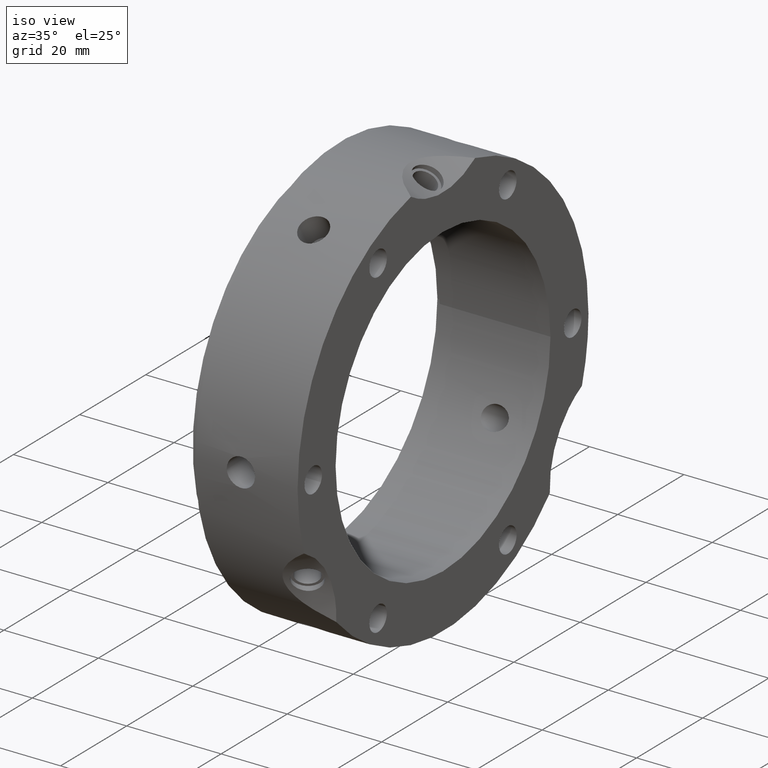
[diagram: clean part render]
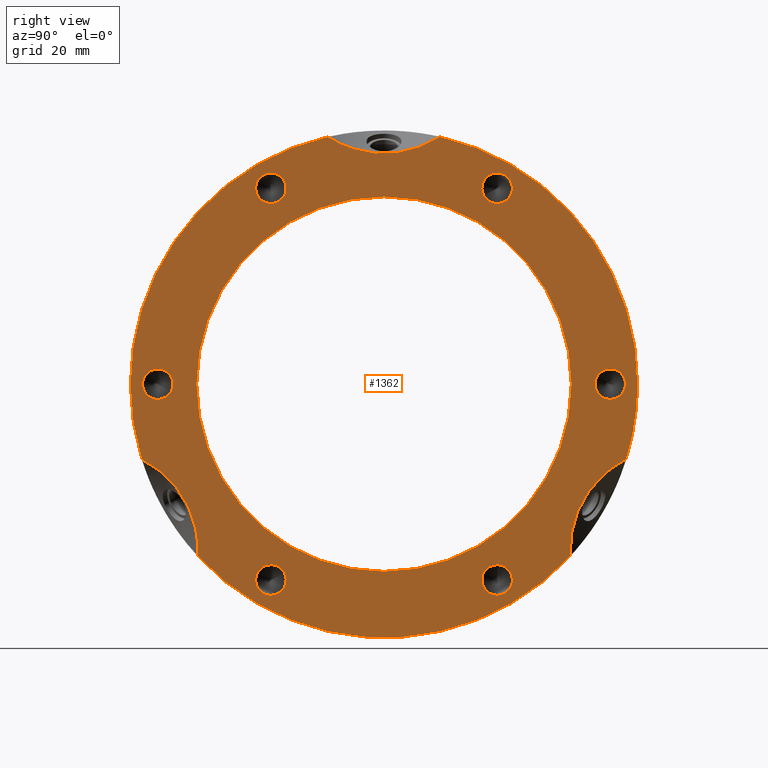
[diagram: tour spotlight — one face highlighted and labeled with its STEP entity id]
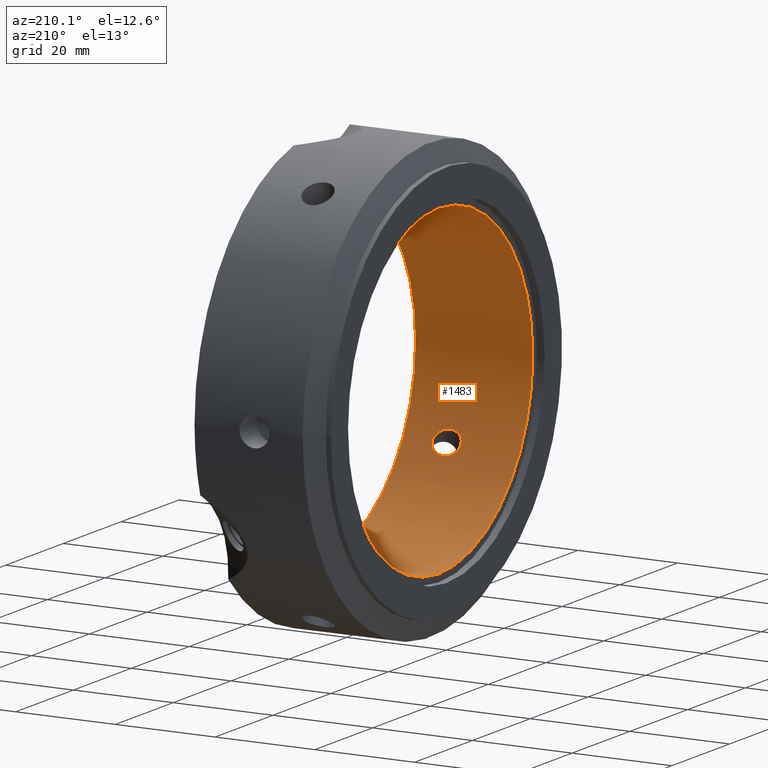
[diagram: tour spotlight — one face highlighted and labeled with its STEP entity id]
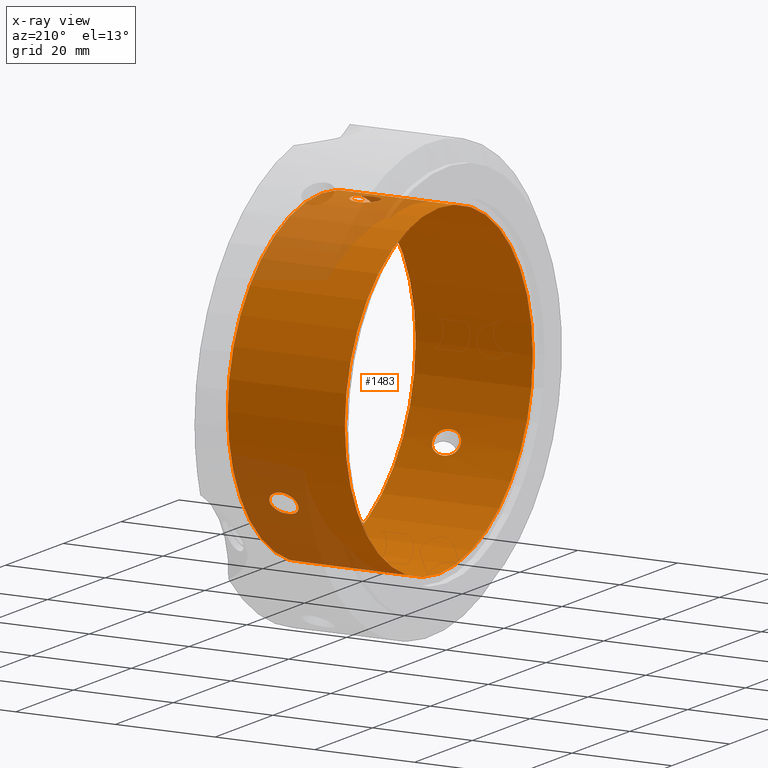
[diagram: x-ray of the same camera — body ghosted, this tour face saturated]
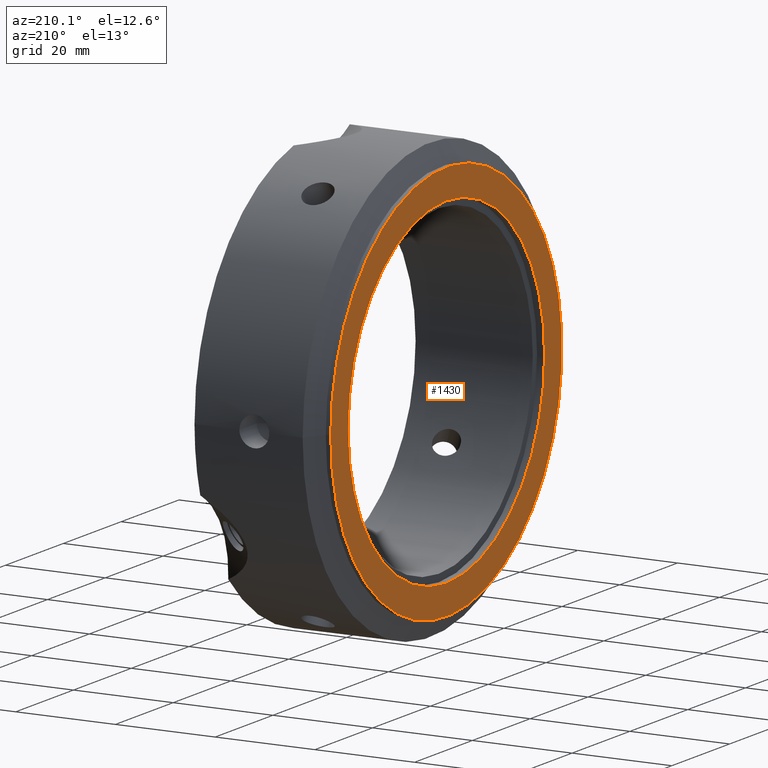
[diagram: tour spotlight — one face highlighted and labeled with its STEP entity id]
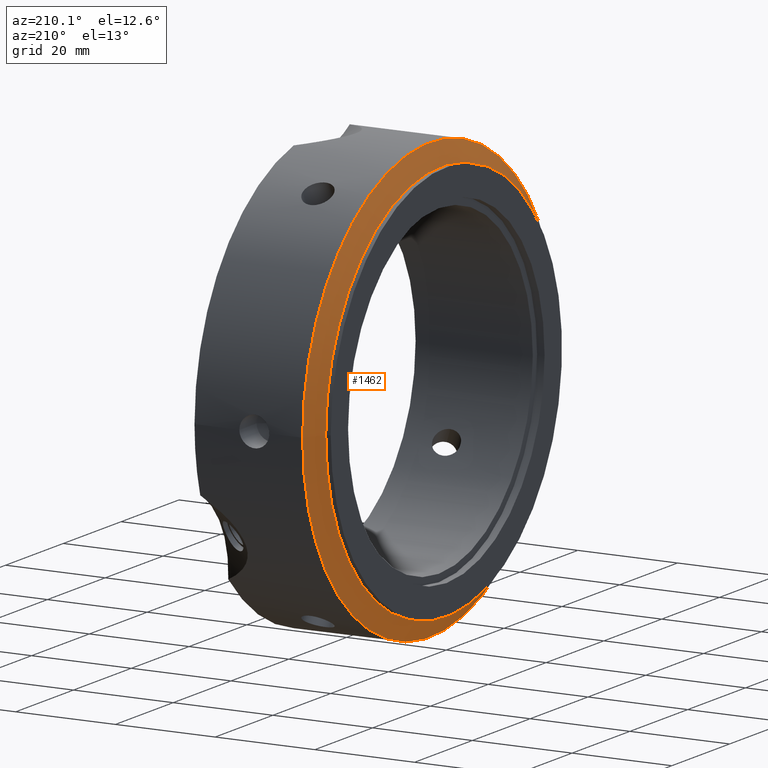
[diagram: tour spotlight — one face highlighted and labeled with its STEP entity id]
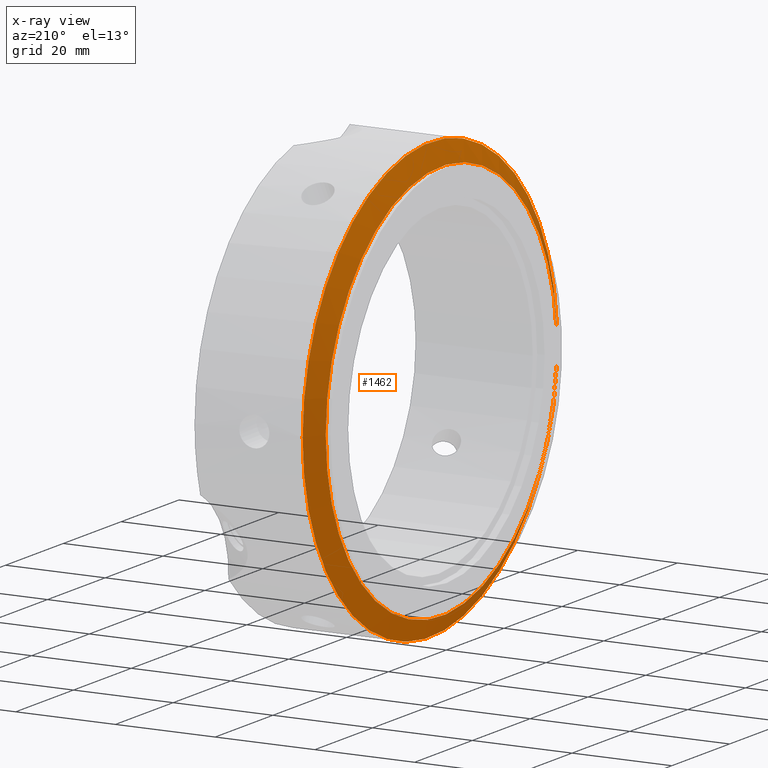
[diagram: x-ray of the same camera — body ghosted, this tour face saturated]
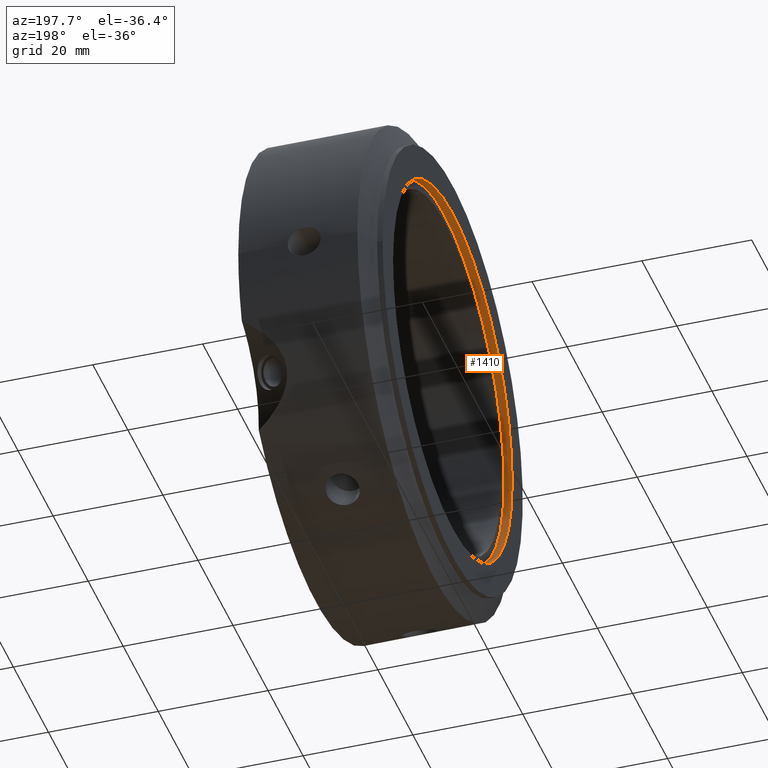
[diagram: tour spotlight — one face highlighted and labeled with its STEP entity id]
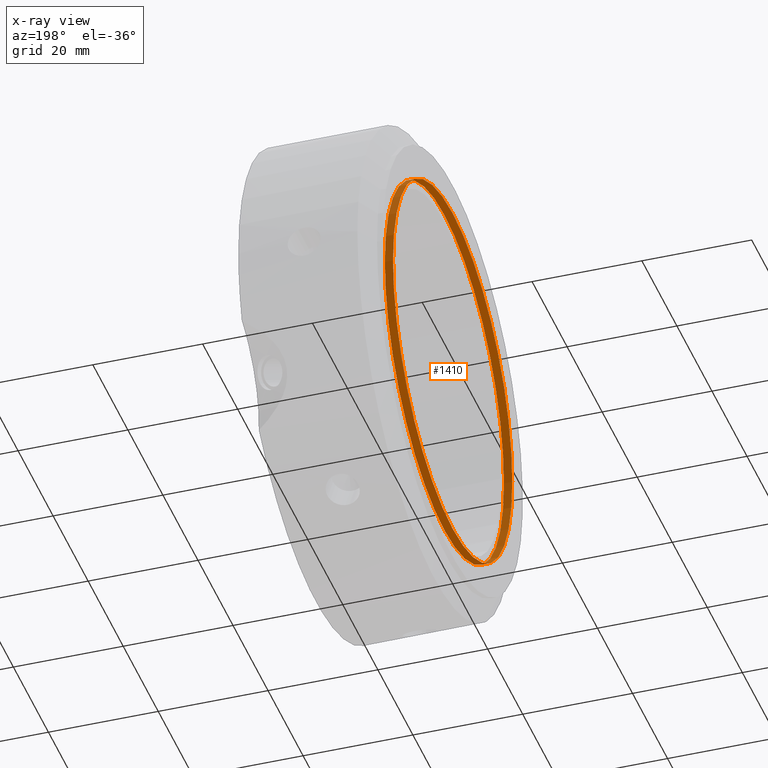
[diagram: x-ray of the same camera — body ghosted, this tour face saturated]
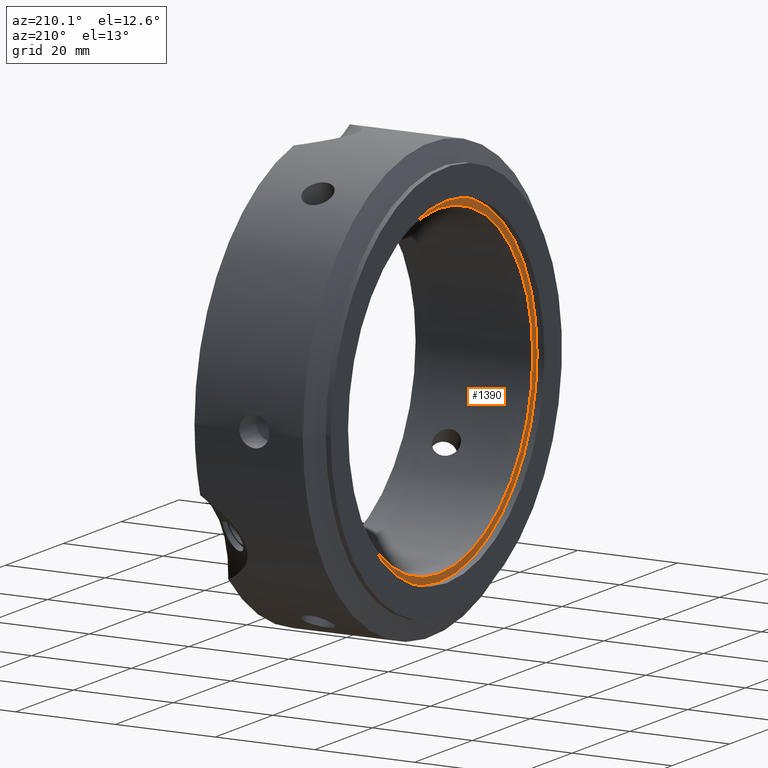
[diagram: tour spotlight — one face highlighted and labeled with its STEP entity id]
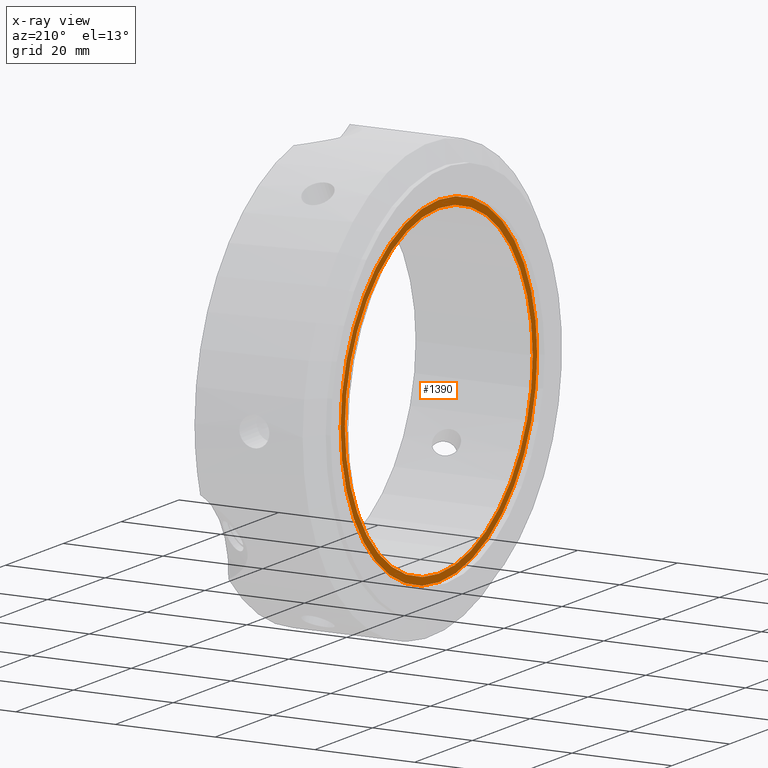
[diagram: x-ray of the same camera — body ghosted, this tour face saturated]
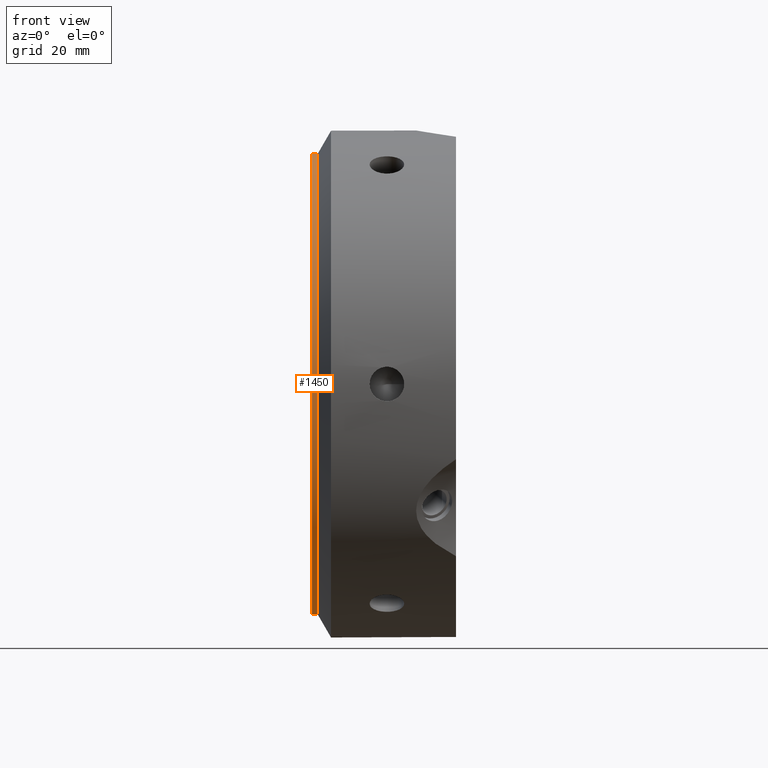
[diagram: tour spotlight — one face highlighted and labeled with its STEP entity id]
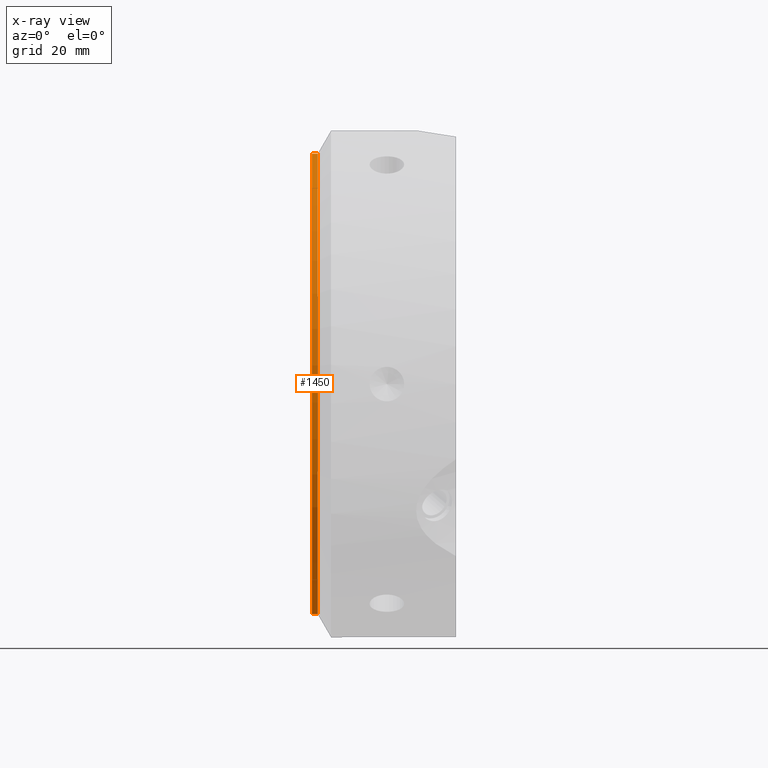
[diagram: x-ray of the same camera — body ghosted, this tour face saturated]
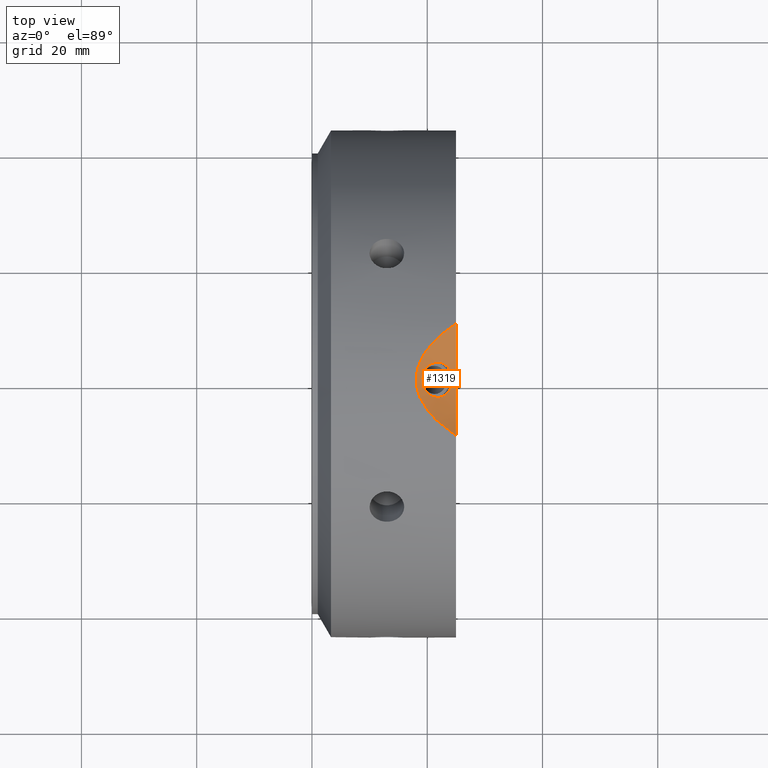
[diagram: tour spotlight — one face highlighted and labeled with its STEP entity id]
A machine part: a face-by-face anatomy tour. The part has 44 B-rep faces; the first image is the clean iso view, then the 8 largest visible faces are spotlighted one at a time (largest first), each with its STEP entity span.

Face 1 — right view, entity #1362. In plain terms, the highlighted planar face has unit normal (1, 0, 0).
Definition (entity closure, byte-faithful):
#165=CARTESIAN_POINT('',(24.999999999999993,17.330032679971254,32.666497098539224));
#166=VERTEX_POINT('',#165);
#167=CARTESIAN_POINT('',(24.999999999999993,19.625000000000018,33.99149709853922));
#168=DIRECTION('',(-1.0,0.0,0.0));
#169=DIRECTION('',(0.0,-0.866025403784439,-0.499999999999999));
#170=AXIS2_PLACEMENT_3D('',#167,#168,#169);
#171=CIRCLE('',#170,2.65);
#172=EDGE_CURVE('',#166,#166,#171,.T.);
#277=CARTESIAN_POINT('',(24.999999999999993,36.955032679971254,1.325000000000001));
#278=VERTEX_POINT('',#277);
#279=CARTESIAN_POINT('',(24.999999999999993,39.250000000000014,-2.220446E-015));
#280=DIRECTION('',(-1.0,0.0,0.0));
#281=DIRECTION('',(0.0,-0.866025403784438,0.5));
#282=AXIS2_PLACEMENT_3D('',#279,#280,#281);
#283=CIRCLE('',#282,2.65);
#284=EDGE_CURVE('',#278,#278,#283,.T.);
#389=CARTESIAN_POINT('',(24.999999999999993,19.625000000000018,-31.341497098539222));
#390=VERTEX_POINT('',#389);
#391=CARTESIAN_POINT('',(24.999999999999993,19.625000000000014,-33.991497098539227));
#392=DIRECTION('',(-1.0,0.0,0.0));
#393=DIRECTION('',(0.0,0.0,1.0));
#394=AXIS2_PLACEMENT_3D('',#391,#392,#393);
#395=CIRCLE('',#394,2.65);
#396=EDGE_CURVE('',#390,#390,#395,.T.);
#501=CARTESIAN_POINT('',(24.999999999999993,-17.330032679971236,-32.666497098539232));
#502=VERTEX_POINT('',#501);
#503=CARTESIAN_POINT('',(24.999999999999993,-19.625,-33.991497098539234));
#504=DIRECTION('',(-1.0,0.0,0.0));
#505=DIRECTION('',(0.0,0.866025403784439,0.5));
#506=AXIS2_PLACEMENT_3D('',#503,#504,#505);
#507=CIRCLE('',#506,2.65);
#508=EDGE_CURVE('',#502,#502,#507,.T.);
#613=CARTESIAN_POINT('',(24.999999999999993,-36.955032679971247,-1.325000000000014));
#614=VERTEX_POINT('',#613);
#615=CARTESIAN_POINT('',(24.999999999999993,-39.250000000000014,-1.332268E-014));
#616=DIRECTION('',(-1.0,0.0,0.0));
#617=DIRECTION('',(0.0,0.866025403784438,-0.5));
#618=AXIS2_PLACEMENT_3D('',#615,#616,#617);
#619=CIRCLE('',#618,2.65);
#620=EDGE_CURVE('',#614,#614,#619,.T.);
#650=CARTESIAN_POINT('',(24.999999999999993,-19.625000000000025,31.341497098539218));
#651=VERTEX_POINT('',#650);
#652=CARTESIAN_POINT('',(24.999999999999993,-19.625000000000025,33.99149709853922));
#653=DIRECTION('',(-1.0,0.0,0.0));
#654=DIRECTION('',(0.0,0.0,-1.0));
#655=AXIS2_PLACEMENT_3D('',#652,#653,#654);
#656=CIRCLE('',#655,2.65);
#657=EDGE_CURVE('',#651,#651,#656,.T.);
#873=CARTESIAN_POINT('',(24.999999999999986,32.301979472688544,-29.87611290221686));
#874=VERTEX_POINT('',#873);
#875=CARTESIAN_POINT('',(24.999999999999986,42.024462475996074,-13.036278364763378));
#876=VERTEX_POINT('',#875);
#877=CARTESIAN_POINT('',(24.999999999999993,54.641016151377542,-31.547005383792552));
#878=DIRECTION('',(-1.0,0.0,0.0));
#879=DIRECTION('',(0.0,-0.866025403784438,0.500000000000001));
#880=AXIS2_PLACEMENT_3D('',#877,#878,#879);
#881=ELLIPSE('',#880,23.094010767585047,20.000000000000014);
#882=EDGE_CURVE('',#874,#876,#881,.T.);
#1044=CARTESIAN_POINT('',(24.999999999999986,-42.024462475996096,-13.036278364763351));
#1045=VERTEX_POINT('',#1044);
#1046=CARTESIAN_POINT('',(24.999999999999986,-32.301979472688572,-29.876112902216821));
#1047=VERTEX_POINT('',#1046);
#1048=CARTESIAN_POINT('',(24.999999999999993,-54.641016151377571,-31.547005383792509));
#1049=DIRECTION('',(-1.0,0.0,0.0));
#1050=DIRECTION('',(0.0,0.866025403784439,0.5));
#1051=AXIS2_PLACEMENT_3D('',#1048,#1049,#1050);
#1052=ELLIPSE('',#1051,23.094010767585047,20.000000000000011);
#1053=EDGE_CURVE('',#1045,#1047,#1052,.T.);
#1123=CARTESIAN_POINT('',(24.999999999999986,0.0,0.0));
#1124=DIRECTION('',(1.0,0.0,0.0));
#1125=DIRECTION('',(0.0,1.0,0.0));
#1126=AXIS2_PLACEMENT_3D('',#1123,#1124,#1125);
#1127=CIRCLE('',#1126,44.0);
#1128=EDGE_CURVE('',#1047,#874,#1127,.T.);
#1131=CARTESIAN_POINT('',(24.999999999999986,-9.722483003307554,42.912391266980173));
#1132=VERTEX_POINT('',#1131);
#1133=CARTESIAN_POINT('',(24.999999999999986,0.0,0.0));
#1134=DIRECTION('',(1.0,0.0,0.0));
#1135=DIRECTION('',(0.0,1.0,0.0));
#1136=AXIS2_PLACEMENT_3D('',#1133,#1134,#1135);
#1137=CIRCLE('',#1136,44.0);
#1138=EDGE_CURVE('',#1132,#1045,#1137,.T.);
#1140=CARTESIAN_POINT('',(24.999999999999986,9.722483003307554,42.912391266980173));
#1141=VERTEX_POINT('',#1140);
#1163=CARTESIAN_POINT('',(24.999999999999986,0.0,0.0));
#1164=DIRECTION('',(1.0,0.0,0.0));
#1165=DIRECTION('',(0.0,1.0,0.0));
#1166=AXIS2_PLACEMENT_3D('',#1163,#1164,#1165);
#1167=CIRCLE('',#1166,44.0);
#1168=EDGE_CURVE('',#876,#1141,#1167,.T.);
#1306=CARTESIAN_POINT('',(24.999999999999993,0.0,63.094010767585047));
#1307=DIRECTION('',(-1.0,0.0,0.0));
#1308=DIRECTION('',(0.0,0.0,-1.0));
#1309=AXIS2_PLACEMENT_3D('',#1306,#1307,#1308);
#1310=ELLIPSE('',#1309,23.094010767585047,20.000000000000007);
#1311=EDGE_CURVE('',#1141,#1132,#1310,.T.);
#1320=CARTESIAN_POINT('',(24.999999999999993,38.25,0.0));
#1321=DIRECTION('',(1.0,0.0,0.0));
#1322=DIRECTION('',(0.0,0.0,-1.0));
#1323=AXIS2_PLACEMENT_3D('',#1320,#1321,#1322);
#1324=PLANE('',#1323);
#1325=ORIENTED_EDGE('',*,*,#882,.T.);
#1326=ORIENTED_EDGE('',*,*,#1168,.T.);
#1327=ORIENTED_EDGE('',*,*,#1311,.T.);
#1328=ORIENTED_EDGE('',*,*,#1138,.T.);
#1329=ORIENTED_EDGE('',*,*,#1053,.T.);
#1330=ORIENTED_EDGE('',*,*,#1128,.T.);
#1331=EDGE_LOOP('',(#1325,#1326,#1327,#1328,#1329,#1330));
#1332=FACE_OUTER_BOUND('',#1331,.T.);
#1333=ORIENTED_EDGE('',*,*,#172,.T.);
#1334=EDGE_LOOP('',(#1333));
#1335=FACE_BOUND('',#1334,.T.);
#1336=ORIENTED_EDGE('',*,*,#284,.T.);
#1337=EDGE_LOOP('',(#1336));
#1338=FACE_BOUND('',#1337,.T.);
#1339=ORIENTED_EDGE('',*,*,#396,.T.);
#1340=EDGE_LOOP('',(#1339));
#1341=FACE_BOUND('',#1340,.T.);
#1342=ORIENTED_EDGE('',*,*,#508,.T.);
#1343=EDGE_LOOP('',(#1342));
#1344=FACE_BOUND('',#1343,.T.);
#1345=ORIENTED_EDGE('',*,*,#620,.T.);
#1346=EDGE_LOOP('',(#1345));
#1347=FACE_BOUND('',#1346,.T.);
#1348=ORIENTED_EDGE('',*,*,#657,.T.);
#1349=EDGE_LOOP('',(#1348));
#1350=FACE_BOUND('',#1349,.T.);
#1351=CARTESIAN_POINT('',(24.999999999999993,32.5,0.0));
#1352=VERTEX_POINT('',#1351);
#1353=CARTESIAN_POINT('',(24.999999999999993,0.0,0.0));
#1354=DIRECTION('',(1.0,0.0,0.0));
#1355=DIRECTION('',(0.0,1.0,0.0));
#1356=AXIS2_PLACEMENT_3D('',#1353,#1354,#1355);
#1357=CIRCLE('',#1356,32.5);
#1358=EDGE_CURVE('',#1352,#1352,#1357,.T.);
#1359=ORIENTED_EDGE('',*,*,#1358,.F.);
#1360=EDGE_LOOP('',(#1359));
#1361=FACE_BOUND('',#1360,.T.);
#1362=ADVANCED_FACE('',(#1332,#1335,#1338,#1341,#1344,#1347,#1350,#1361),#1324,.T.);

Face 2 — auxiliary view, entity #1483. An x-ray twin of the same camera follows (body ghosted, this face saturated) — the face is partly hidden behind the body. In plain terms, the highlighted cylindrical surface (bore or boss wall) has radius 32.5 mm, axis along (1, 0, 0).
Definition (entity closure, byte-faithful):
#745=CARTESIAN_POINT('',(16.210120057961518,29.294430086942246,-14.074315822847403));
#746=VERTEX_POINT('',#745);
#747=CARTESIAN_POINT('',(16.210120057961518,29.294430086942246,-14.074315822847403));
#748=CARTESIAN_POINT('',(16.57503358276189,29.294430086942246,-14.074315822847403));
#749=CARTESIAN_POINT('',(16.96706125116923,29.266752719532878,-14.132409695736929));
#750=CARTESIAN_POINT('',(17.698370893629917,29.149675977489558,-14.372341807928093));
#751=CARTESIAN_POINT('',(18.037672121922338,29.060102744699137,-14.554036471783586));
#752=CARTESIAN_POINT('',(18.537619391257387,28.855729561517698,-14.954569768897471));
#753=CARTESIAN_POINT('',(18.746196931722817,28.734767003939453,-15.187121027222286));
#754=CARTESIAN_POINT('',(19.029065453284158,28.456892223965035,-15.701616641372183));
#755=CARTESIAN_POINT('',(19.102715022268239,28.29957660597487,-15.983695485763906));
#756=CARTESIAN_POINT('',(19.102715022268239,27.99207464001362,-16.516304514236115));
#757=CARTESIAN_POINT('',(19.029065453284158,27.826445003895305,-16.79358325802351));
#758=CARTESIAN_POINT('',(18.746196931722817,27.51981612189303,-17.291477683627317));
#759=CARTESIAN_POINT('',(18.537619391257387,27.378902103290823,-17.512509960559218));
#760=CARTESIAN_POINT('',(18.037672121922338,27.134216684519377,-17.889768977603573));
#761=CARTESIAN_POINT('',(17.698370893629917,27.02165110628366,-18.058189004626925));
#762=CARTESIAN_POINT('',(16.96706125116923,26.872402172964112,-18.279546493524332));
#763=CARTESIAN_POINT('',(16.57503358276189,26.835930086942245,-18.332562733255489));
#764=CARTESIAN_POINT('',(15.86665484263558,26.835930086942245,-18.332562733255489));
#765=CARTESIAN_POINT('',(15.496584963065384,26.868400437188882,-18.285355808605072));
#766=CARTESIAN_POINT('',(14.8062506452608,27.006261274252683,-18.081123612391025));
#767=CARTESIAN_POINT('',(14.486087314613778,27.111645368241717,-17.923752426328186));
#768=CARTESIAN_POINT('',(13.993137445580082,27.351322501293531,-17.555614044871245));
#769=CARTESIAN_POINT('',(13.781439568577563,27.49764229802372,-17.326898578499318));
#770=CARTESIAN_POINT('',(13.497335287943324,27.815807414948143,-16.811383171620037));
#771=CARTESIAN_POINT('',(13.425052475057456,27.987417893304286,-16.524370236134654));
#772=CARTESIAN_POINT('',(13.425052475057456,28.304233352684204,-15.975629763865369));
#773=CARTESIAN_POINT('',(13.497335287943326,28.466988606851217,-15.683504262310651));
#774=CARTESIAN_POINT('',(13.781439568577568,28.754355486788739,-15.150207485016409));
#775=CARTESIAN_POINT('',(13.993137445580077,28.879268992540137,-14.909133090785529));
#776=CARTESIAN_POINT('',(14.486087314613778,29.078247616464026,-14.51749741412797));
#777=CARTESIAN_POINT('',(14.806250645260802,29.161843014423617,-14.347546518547238));
#778=CARTESIAN_POINT('',(15.496584963065388,29.269782866083766,-14.126039433355979));
#779=CARTESIAN_POINT('',(15.866654842635581,29.294430086942249,-14.074315822847403));
#780=CARTESIAN_POINT('',(16.210120057961518,29.294430086942249,-14.074315822847403));
#781=B_SPLINE_CURVE_WITH_KNOTS('',3,(#747,#748,#749,#750,#751,#752,#753,#754,#755,#756,#757,#758,#759,#760,#761,#762,#763,#764,#765,#766,#767,#768,#769,#770,#771,#772,#773,#774,#775,#776,#777,#778,#779,#780),.UNSPECIFIED.,.T.,.U.,(4,2,2,2,2,2,2,2,2,2,2,2,2,2,2,2,4),(0.0,0.109474057440112,0.218948114880225,0.311198704668601,0.403449294456978,0.495699884245354,0.587950474033731,0.697424531473843,0.806898588913956,0.909938153511736,1.012977718109517,1.108022355923491,1.203066993737465,1.29811163155144,1.393156269365415,1.496195833963195,1.599235398560976),.UNSPECIFIED.);
#782=EDGE_CURVE('',#746,#746,#781,.T.);
#916=CARTESIAN_POINT('',(16.210120057961518,-26.835930086942259,-18.332562733255472));
#917=VERTEX_POINT('',#916);
#918=CARTESIAN_POINT('',(16.210120057961518,-26.835930086942259,-18.332562733255472));
#919=CARTESIAN_POINT('',(16.57503358276189,-26.835930086942259,-18.332562733255472));
#920=CARTESIAN_POINT('',(16.967061251169241,-26.872402172964129,-18.279546493524318));
#921=CARTESIAN_POINT('',(17.698370893629928,-27.021651106283677,-18.058189004626904));
#922=CARTESIAN_POINT('',(18.037672121922341,-27.134216684519394,-17.889768977603552));
#923=CARTESIAN_POINT('',(18.53761939125739,-27.378902103290841,-17.512509960559196));
#924=CARTESIAN_POINT('',(18.746196931722821,-27.519816121893047,-17.291477683627292));
#925=CARTESIAN_POINT('',(19.029065453284158,-27.826445003895323,-16.793583258023485));
#926=CARTESIAN_POINT('',(19.102715022268242,-27.992074640013634,-16.516304514236097));
#927=CARTESIAN_POINT('',(19.102715022268242,-28.299576605974892,-15.983695485763887));
#928=CARTESIAN_POINT('',(19.029065453284161,-28.456892223965049,-15.701616641372162));
#929=CARTESIAN_POINT('',(18.746196931722821,-28.734767003939467,-15.187121027222265));
#930=CARTESIAN_POINT('',(18.53761939125739,-28.855729561517709,-14.95456976889745));
#931=CARTESIAN_POINT('',(18.037672121922341,-29.060102744699144,-14.554036471783565));
#932=CARTESIAN_POINT('',(17.698370893629921,-29.149675977489569,-14.372341807928073));
#933=CARTESIAN_POINT('',(16.967061251169234,-29.266752719532889,-14.132409695736909));
#934=CARTESIAN_POINT('',(16.575033582761893,-29.294430086942256,-14.074315822847385));
#935=CARTESIAN_POINT('',(15.866654842635583,-29.294430086942256,-14.074315822847385));
#936=CARTESIAN_POINT('',(15.49658496306539,-29.269782866083776,-14.126039433355956));
#937=CARTESIAN_POINT('',(14.806250645260802,-29.161843014423624,-14.347546518547215));
#938=CARTESIAN_POINT('',(14.486087314613778,-29.078247616464033,-14.517497414127952));
#939=CARTESIAN_POINT('',(13.993137445580079,-28.879268992540148,-14.909133090785511));
#940=CARTESIAN_POINT('',(13.78143956857757,-28.754355486788754,-15.150207485016395));
#941=CARTESIAN_POINT('',(13.497335287943331,-28.466988606851235,-15.683504262310633));
#942=CARTESIAN_POINT('',(13.425052475057463,-28.304233352684221,-15.975629763865351));
#943=CARTESIAN_POINT('',(13.425052475057463,-27.987417893304304,-16.524370236134637));
#944=CARTESIAN_POINT('',(13.497335287943324,-27.815807414948154,-16.811383171620019));
#945=CARTESIAN_POINT('',(13.781439568577557,-27.497642298023731,-17.3268985784993));
#946=CARTESIAN_POINT('',(13.993137445580084,-27.351322501293545,-17.555614044871227));
#947=CARTESIAN_POINT('',(14.486087314613783,-27.111645368241732,-17.923752426328168));
#948=CARTESIAN_POINT('',(14.806250645260803,-27.006261274252694,-18.081123612391011));
#949=CARTESIAN_POINT('',(15.49658496306539,-26.8684004371889,-18.285355808605058));
#950=CARTESIAN_POINT('',(15.866654842635583,-26.835930086942255,-18.332562733255468));
#951=CARTESIAN_POINT('',(16.210120057961518,-26.835930086942255,-18.332562733255468));
#952=B_SPLINE_CURVE_WITH_KNOTS('',3,(#918,#919,#920,#921,#922,#923,#924,#925,#926,#927,#928,#929,#930,#931,#932,#933,#934,#935,#936,#937,#938,#939,#940,#941,#942,#943,#944,#945,#946,#947,#948,#949,#950,#951),.UNSPECIFIED.,.T.,.U.,(4,2,2,2,2,2,2,2,2,2,2,2,2,2,2,2,4),(0.0,0.109474057440113,0.218948114880225,0.311198704668602,0.403449294456978,0.495699884245354,0.587950474033731,0.697424531473843,0.806898588913956,0.909938153511736,1.012977718109517,1.108022355923492,1.203066993737466,1.29811163155144,1.393156269365415,1.496195833963195,1.599235398560976),.UNSPECIFIED.);
#953=EDGE_CURVE('',#917,#917,#952,.T.);
#1178=CARTESIAN_POINT('',(16.210120057961518,-2.4585,32.406878556102868));
#1179=VERTEX_POINT('',#1178);
#1180=CARTESIAN_POINT('',(16.210120057961518,-2.4585,32.406878556102868));
#1181=CARTESIAN_POINT('',(16.575033582761893,-2.4585,32.406878556102868));
#1182=CARTESIAN_POINT('',(16.967061251169238,-2.394350546568762,32.411956189261247));
#1183=CARTESIAN_POINT('',(17.698370893629924,-2.128024871205897,32.430530812554991));
#1184=CARTESIAN_POINT('',(18.037672121922341,-1.925886060179755,32.443805449387135));
#1185=CARTESIAN_POINT('',(18.53761939125739,-1.476827458226871,32.467079729456657));
#1186=CARTESIAN_POINT('',(18.746196931722825,-1.214950882046424,32.478598710849568));
#1187=CARTESIAN_POINT('',(19.029065453284161,-0.630447220069727,32.495199899395658));
#1188=CARTESIAN_POINT('',(19.102715022268242,-0.307501965961255,32.5));
#1189=CARTESIAN_POINT('',(19.102715022268242,0.307501965961255,32.5));
#1190=CARTESIAN_POINT('',(19.029065453284161,0.630447220069728,32.495199899395658));
#1191=CARTESIAN_POINT('',(18.746196931722825,1.214950882046424,32.478598710849568));
#1192=CARTESIAN_POINT('',(18.53761939125739,1.476827458226871,32.467079729456657));
#1193=CARTESIAN_POINT('',(18.037672121922341,1.925886060179755,32.443805449387135));
#1194=CARTESIAN_POINT('',(17.698370893629921,2.128024871205897,32.430530812554991));
#1195=CARTESIAN_POINT('',(16.967061251169238,2.394350546568761,32.411956189261247));
#1196=CARTESIAN_POINT('',(16.575033582761893,2.4585,32.406878556102868));
#1197=CARTESIAN_POINT('',(15.866654842635581,2.4585,32.406878556102868));
#1198=CARTESIAN_POINT('',(15.496584963065384,2.401382428894884,32.411395241961017));
#1199=CARTESIAN_POINT('',(14.8062506452608,2.15558174017093,32.428670130938229));
#1200=CARTESIAN_POINT('',(14.486087314613778,1.966602248222307,32.44124984045613));
#1201=CARTESIAN_POINT('',(13.993137445580084,1.527946491246603,32.464747135656751));
#1202=CARTESIAN_POINT('',(13.781439568577564,1.256713188765015,32.47710606351572));
#1203=CARTESIAN_POINT('',(13.497335287943329,0.651181191903073,32.494887433930671));
#1204=CARTESIAN_POINT('',(13.425052475057463,0.316815459379914,32.5));
#1205=CARTESIAN_POINT('',(13.425052475057463,-0.306092595390122,32.5));
#1206=CARTESIAN_POINT('',(13.492579725603719,-0.630078381390714,32.495232614889972));
#1207=CARTESIAN_POINT('',(13.759658566981345,-1.22023379569566,32.478426238889583));
#1208=CARTESIAN_POINT('',(13.959072060468031,-1.486473714036498,32.466662387332939));
#1209=CARTESIAN_POINT('',(14.441015681009446,-1.937134878608941,32.44312102868502));
#1210=CARTESIAN_POINT('',(14.767376201636537,-2.137246107297626,32.429912621796881));
#1211=CARTESIAN_POINT('',(15.474902840241405,-2.39778834734434,32.411690246232304));
#1212=CARTESIAN_POINT('',(15.855970777823174,-2.4585,32.406878556102868));
#1213=CARTESIAN_POINT('',(16.210120057961518,-2.4585,32.406878556102868));
#1214=B_SPLINE_CURVE_WITH_KNOTS('',3,(#1180,#1181,#1182,#1183,#1184,#1185,#1186,#1187,#1188,#1189,#1190,#1191,#1192,#1193,#1194,#1195,#1196,#1197,#1198,#1199,#1200,#1201,#1202,#1203,#1204,#1205,#1206,#1207,#1208,#1209,#1210,#1211,#1212,#1213),.UNSPECIFIED.,.T.,.U.,(4,2,2,2,2,2,2,2,2,2,2,2,2,2,2,2,4),(0.0,0.109474057440112,0.218948114880225,0.311198704668601,0.403449294456978,0.495699884245354,0.587950474033731,0.697424531473843,0.806898588913956,0.909938153511736,1.012977718109517,1.108022355923491,1.203066993737465,1.294894772354502,1.386722550971539,1.492967335013042,1.599212119054545),.UNSPECIFIED.);
#1215=EDGE_CURVE('',#1179,#1179,#1214,.T.);
#1351=CARTESIAN_POINT('',(24.999999999999993,32.5,0.0));
#1352=VERTEX_POINT('',#1351);
#1353=CARTESIAN_POINT('',(24.999999999999993,0.0,0.0));
#1354=DIRECTION('',(1.0,0.0,0.0));
#1355=DIRECTION('',(0.0,1.0,0.0));
#1356=AXIS2_PLACEMENT_3D('',#1353,#1354,#1355);
#1357=CIRCLE('',#1356,32.5);
#1358=EDGE_CURVE('',#1352,#1352,#1357,.T.);
#1379=CARTESIAN_POINT('',(1.499999999999991,32.5,0.0));
#1380=VERTEX_POINT('',#1379);
#1381=CARTESIAN_POINT('',(1.499999999999991,0.0,0.0));
#1382=DIRECTION('',(1.0,0.0,0.0));
#1383=DIRECTION('',(0.0,1.0,0.0));
#1384=AXIS2_PLACEMENT_3D('',#1381,#1382,#1383);
#1385=CIRCLE('',#1384,32.5);
#1386=EDGE_CURVE('',#1380,#1380,#1385,.T.);
#1463=CARTESIAN_POINT('',(13.249999999999989,0.0,0.0));
#1464=DIRECTION('',(1.0,0.0,0.0));
#1465=DIRECTION('',(0.0,1.0,0.0));
#1466=AXIS2_PLACEMENT_3D('',#1463,#1464,#1465);
#1467=CYLINDRICAL_SURFACE('',#1466,32.5);
#1468=ORIENTED_EDGE('',*,*,#1386,.F.);
#1469=EDGE_LOOP('',(#1468));
#1470=FACE_OUTER_BOUND('',#1469,.T.);
#1471=ORIENTED_EDGE('',*,*,#782,.T.);
#1472=EDGE_LOOP('',(#1471));
#1473=FACE_BOUND('',#1472,.T.);
#1474=ORIENTED_EDGE('',*,*,#953,.T.);
#1475=EDGE_LOOP('',(#1474));
#1476=FACE_BOUND('',#1475,.T.);
#1477=ORIENTED_EDGE('',*,*,#1215,.T.);
#1478=EDGE_LOOP('',(#1477));
#1479=FACE_BOUND('',#1478,.T.);
#1480=ORIENTED_EDGE('',*,*,#1358,.T.);
#1481=EDGE_LOOP('',(#1480));
#1482=FACE_BOUND('',#1481,.T.);
#1483=ADVANCED_FACE('',(#1470,#1473,#1476,#1479,#1482),#1467,.F.);

Face 3 — auxiliary view, entity #1430. In plain terms, the highlighted planar face has unit normal (-1, 0, 0).
Definition (entity closure, byte-faithful):
#1396=CARTESIAN_POINT('',(-9.436896E-015,34.0,0.0));
#1397=VERTEX_POINT('',#1396);
#1398=CARTESIAN_POINT('',(-9.436896E-015,0.0,0.0));
#1399=DIRECTION('',(1.0,0.0,0.0));
#1400=DIRECTION('',(0.0,1.0,0.0));
#1401=AXIS2_PLACEMENT_3D('',#1398,#1399,#1400);
#1402=CIRCLE('',#1401,34.0);
#1403=EDGE_CURVE('',#1397,#1397,#1402,.T.);
#1411=CARTESIAN_POINT('',(-1.137979E-014,37.0,0.0));
#1412=DIRECTION('',(-1.0,0.0,0.0));
#1413=DIRECTION('',(0.0,0.0,1.0));
#1414=AXIS2_PLACEMENT_3D('',#1411,#1412,#1413);
#1415=PLANE('',#1414);
#1416=CARTESIAN_POINT('',(-1.332268E-014,39.999999999999993,0.0));
#1417=VERTEX_POINT('',#1416);
#1418=CARTESIAN_POINT('',(-1.332268E-014,0.0,0.0));
#1419=DIRECTION('',(1.0,0.0,0.0));
#1420=DIRECTION('',(0.0,1.0,0.0));
#1421=AXIS2_PLACEMENT_3D('',#1418,#1419,#1420);
#1422=CIRCLE('',#1421,39.999999999999993);
#1423=EDGE_CURVE('',#1417,#1417,#1422,.T.);
#1424=ORIENTED_EDGE('',*,*,#1423,.F.);
#1425=EDGE_LOOP('',(#1424));
#1426=FACE_OUTER_BOUND('',#1425,.T.);
#1427=ORIENTED_EDGE('',*,*,#1403,.T.);
#1428=EDGE_LOOP('',(#1427));
#1429=FACE_BOUND('',#1428,.T.);
#1430=ADVANCED_FACE('',(#1426,#1429),#1415,.T.);

Face 4 — auxiliary view, entity #1462. An x-ray twin of the same camera follows (body ghosted, this face saturated) — the face is partly hidden behind the body. In plain terms, the highlighted conical surface has half-angle 60 deg.
Definition (entity closure, byte-faithful):
#1087=CARTESIAN_POINT('',(3.309401076758492,44.0,0.0));
#1088=VERTEX_POINT('',#1087);
#1089=CARTESIAN_POINT('',(3.309401076758492,0.0,0.0));
#1090=DIRECTION('',(1.0,0.0,0.0));
#1091=DIRECTION('',(0.0,1.0,0.0));
#1092=AXIS2_PLACEMENT_3D('',#1089,#1090,#1091);
#1093=CIRCLE('',#1092,44.0);
#1094=EDGE_CURVE('',#1088,#1088,#1093,.T.);
#1436=CARTESIAN_POINT('',(0.999999999999987,39.999999999999993,0.0));
#1437=VERTEX_POINT('',#1436);
#1438=CARTESIAN_POINT('',(0.999999999999987,0.0,0.0));
#1439=DIRECTION('',(1.0,0.0,0.0));
#1440=DIRECTION('',(0.0,1.0,0.0));
#1441=AXIS2_PLACEMENT_3D('',#1438,#1439,#1440);
#1442=CIRCLE('',#1441,39.999999999999993);
#1443=EDGE_CURVE('',#1437,#1437,#1442,.T.);
#1451=CARTESIAN_POINT('',(2.15470053837924,0.0,0.0));
#1452=DIRECTION('',(1.0,0.0,0.0));
#1453=DIRECTION('',(0.0,1.0,0.0));
#1454=AXIS2_PLACEMENT_3D('',#1451,#1452,#1453);
#1455=CONICAL_SURFACE('',#1454,41.999999999999993,60.000000000000057);
#1456=ORIENTED_EDGE('',*,*,#1094,.F.);
#1457=EDGE_LOOP('',(#1456));
#1458=FACE_OUTER_BOUND('',#1457,.T.);
#1459=ORIENTED_EDGE('',*,*,#1443,.T.);
#1460=EDGE_LOOP('',(#1459));
#1461=FACE_BOUND('',#1460,.T.);
#1462=ADVANCED_FACE('',(#1458,#1461),#1455,.T.);

Face 5 — auxiliary view, entity #1410. An x-ray twin of the same camera follows (body ghosted, this face saturated) — the face is partly hidden behind the body. In plain terms, the highlighted cylindrical surface (bore or boss wall) has radius 34 mm, axis along (1, 0, 0).
Definition (entity closure, byte-faithful):
#1368=CARTESIAN_POINT('',(1.499999999999991,34.0,0.0));
#1369=VERTEX_POINT('',#1368);
#1370=CARTESIAN_POINT('',(1.499999999999991,0.0,0.0));
#1371=DIRECTION('',(1.0,0.0,0.0));
#1372=DIRECTION('',(0.0,1.0,0.0));
#1373=AXIS2_PLACEMENT_3D('',#1370,#1371,#1372);
#1374=CIRCLE('',#1373,34.0);
#1375=EDGE_CURVE('',#1369,#1369,#1374,.T.);
#1391=CARTESIAN_POINT('',(0.749999999999991,0.0,0.0));
#1392=DIRECTION('',(1.0,0.0,0.0));
#1393=DIRECTION('',(0.0,1.0,0.0));
#1394=AXIS2_PLACEMENT_3D('',#1391,#1392,#1393);
#1395=CYLINDRICAL_SURFACE('',#1394,34.0);
#1396=CARTESIAN_POINT('',(-9.436896E-015,34.0,0.0));
#1397=VERTEX_POINT('',#1396);
#1398=CARTESIAN_POINT('',(-9.436896E-015,0.0,0.0));
#1399=DIRECTION('',(1.0,0.0,0.0));
#1400=DIRECTION('',(0.0,1.0,0.0));
#1401=AXIS2_PLACEMENT_3D('',#1398,#1399,#1400);
#1402=CIRCLE('',#1401,34.0);
#1403=EDGE_CURVE('',#1397,#1397,#1402,.T.);
#1404=ORIENTED_EDGE('',*,*,#1403,.F.);
#1405=EDGE_LOOP('',(#1404));
#1406=FACE_OUTER_BOUND('',#1405,.T.);
#1407=ORIENTED_EDGE('',*,*,#1375,.T.);
#1408=EDGE_LOOP('',(#1407));
#1409=FACE_BOUND('',#1408,.T.);
#1410=ADVANCED_FACE('',(#1406,#1409),#1395,.F.);

Face 6 — auxiliary view, entity #1390. An x-ray twin of the same camera follows (body ghosted, this face saturated) — the face is partly hidden behind the body. In plain terms, the highlighted planar face has unit normal (-1, 0, 0).
Definition (entity closure, byte-faithful):
#1363=CARTESIAN_POINT('',(1.499999999999991,33.25,0.0));
#1364=DIRECTION('',(-1.0,0.0,0.0));
#1365=DIRECTION('',(0.0,0.0,1.0));
#1366=AXIS2_PLACEMENT_3D('',#1363,#1364,#1365);
#1367=PLANE('',#1366);
#1368=CARTESIAN_POINT('',(1.499999999999991,34.0,0.0));
#1369=VERTEX_POINT('',#1368);
#1370=CARTESIAN_POINT('',(1.499999999999991,0.0,0.0));
#1371=DIRECTION('',(1.0,0.0,0.0));
#1372=DIRECTION('',(0.0,1.0,0.0));
#1373=AXIS2_PLACEMENT_3D('',#1370,#1371,#1372);
#1374=CIRCLE('',#1373,34.0);
#1375=EDGE_CURVE('',#1369,#1369,#1374,.T.);
#1376=ORIENTED_EDGE('',*,*,#1375,.F.);
#1377=EDGE_LOOP('',(#1376));
#1378=FACE_OUTER_BOUND('',#1377,.T.);
#1379=CARTESIAN_POINT('',(1.499999999999991,32.5,0.0));
#1380=VERTEX_POINT('',#1379);
#1381=CARTESIAN_POINT('',(1.499999999999991,0.0,0.0));
#1382=DIRECTION('',(1.0,0.0,0.0));
#1383=DIRECTION('',(0.0,1.0,0.0));
#1384=AXIS2_PLACEMENT_3D('',#1381,#1382,#1383);
#1385=CIRCLE('',#1384,32.5);
#1386=EDGE_CURVE('',#1380,#1380,#1385,.T.);
#1387=ORIENTED_EDGE('',*,*,#1386,.T.);
#1388=EDGE_LOOP('',(#1387));
#1389=FACE_BOUND('',#1388,.T.);
#1390=ADVANCED_FACE('',(#1378,#1389),#1367,.T.);

Face 7 — front view, entity #1450. An x-ray twin of the same camera follows (body ghosted, this face saturated) — the face is partly hidden behind the body. In plain terms, the highlighted cylindrical surface (bore or boss wall) has radius 40 mm, axis along (1, 0, 0).
Definition (entity closure, byte-faithful):
#1416=CARTESIAN_POINT('',(-1.332268E-014,39.999999999999993,0.0));
#1417=VERTEX_POINT('',#1416);
#1418=CARTESIAN_POINT('',(-1.332268E-014,0.0,0.0));
#1419=DIRECTION('',(1.0,0.0,0.0));
#1420=DIRECTION('',(0.0,1.0,0.0));
#1421=AXIS2_PLACEMENT_3D('',#1418,#1419,#1420);
#1422=CIRCLE('',#1421,39.999999999999993);
#1423=EDGE_CURVE('',#1417,#1417,#1422,.T.);
#1431=CARTESIAN_POINT('',(0.499999999999987,0.0,0.0));
#1432=DIRECTION('',(1.0,0.0,0.0));
#1433=DIRECTION('',(0.0,1.0,0.0));
#1434=AXIS2_PLACEMENT_3D('',#1431,#1432,#1433);
#1435=CYLINDRICAL_SURFACE('',#1434,39.999999999999993);
#1436=CARTESIAN_POINT('',(0.999999999999987,39.999999999999993,0.0));
#1437=VERTEX_POINT('',#1436);
#1438=CARTESIAN_POINT('',(0.999999999999987,0.0,0.0));
#1439=DIRECTION('',(1.0,0.0,0.0));
#1440=DIRECTION('',(0.0,1.0,0.0));
#1441=AXIS2_PLACEMENT_3D('',#1438,#1439,#1440);
#1442=CIRCLE('',#1441,39.999999999999993);
#1443=EDGE_CURVE('',#1437,#1437,#1442,.T.);
#1444=ORIENTED_EDGE('',*,*,#1443,.F.);
#1445=EDGE_LOOP('',(#1444));
#1446=FACE_OUTER_BOUND('',#1445,.T.);
#1447=ORIENTED_EDGE('',*,*,#1423,.T.);
#1448=EDGE_LOOP('',(#1447));
#1449=FACE_BOUND('',#1448,.T.);
#1450=ADVANCED_FACE('',(#1446,#1449),#1435,.T.);

Face 8 — top view, entity #1319. In plain terms, the highlighted cylindrical surface (partial cylindrical patch) has radius 20 mm, axis along (-0.866, 0, 0.5).
Definition (entity closure, byte-faithful):
#1131=CARTESIAN_POINT('',(24.999999999999986,-9.722483003307554,42.912391266980173));
#1132=VERTEX_POINT('',#1131);
#1140=CARTESIAN_POINT('',(24.999999999999986,9.722483003307554,42.912391266980173));
#1141=VERTEX_POINT('',#1140);
#1142=CARTESIAN_POINT('',(24.999999999999986,-9.722483003307552,42.912391266980165));
#1143=CARTESIAN_POINT('',(23.721762037481888,-8.873142000228178,43.104822945165523));
#1144=CARTESIAN_POINT('',(22.534110533251962,-7.948504294743604,43.288490119193327));
#1145=CARTESIAN_POINT('',(20.59311957718792,-6.03499694300406,43.593495527429695));
#1146=CARTESIAN_POINT('',(19.70363686901343,-4.960087317769927,43.735785609488147));
#1147=CARTESIAN_POINT('',(18.753664582686191,-3.178315433625748,43.889106612659262));
#1148=CARTESIAN_POINT('',(18.499903811193253,-2.555659938386888,43.930314054898417));
#1149=CARTESIAN_POINT('',(18.158765006777827,-1.285823647150529,43.985799393445326));
#1150=CARTESIAN_POINT('',(18.071796769724475,-0.63852941997398,44.0));
#1151=CARTESIAN_POINT('',(18.071796769724475,0.63852941997398,44.0));
#1152=CARTESIAN_POINT('',(18.158765006777827,1.285823647150529,43.985799393445326));
#1153=CARTESIAN_POINT('',(18.499903811193253,2.555659938386888,43.930314054898417));
#1154=CARTESIAN_POINT('',(18.753664582686191,3.178315433625748,43.889106612659262));
#1155=CARTESIAN_POINT('',(19.70363686901343,4.960087317769927,43.735785609488147));
#1156=CARTESIAN_POINT('',(20.59311957718792,6.03499694300406,43.593495527429695));
#1157=CARTESIAN_POINT('',(22.534110533251955,7.948504294743604,43.288490119193327));
#1158=CARTESIAN_POINT('',(23.721762037481895,8.873142000228182,43.104822945165523));
#1159=CARTESIAN_POINT('',(24.999999999999993,9.722483003307554,42.912391266980165));
#1160=B_SPLINE_CURVE_WITH_KNOTS('',3,(#1142,#1143,#1144,#1145,#1146,#1147,#1148,#1149,#1150,#1151,#1152,#1153,#1154,#1155,#1156,#1157,#1158,#1159),.UNSPECIFIED.,.F.,.U.,(4,2,2,2,2,2,2,2,4),(1.281617076656252,1.721286524604976,2.104404176589363,2.295963002581557,2.487521828573751,2.679080654565945,2.870639480558138,3.253757132542525,3.693426580491249),.UNSPECIFIED.);
#1161=EDGE_CURVE('',#1132,#1141,#1160,.T.);
#1236=CARTESIAN_POINT('',(21.81247336968881,-3.050000000000001,42.110439133966295));
#1237=VERTEX_POINT('',#1236);
#1238=CARTESIAN_POINT('',(21.81247336968881,-3.050000000000001,42.110439133966295));
#1239=CARTESIAN_POINT('',(21.480255586895804,-3.050000000000001,42.30224516029142));
#1240=CARTESIAN_POINT('',(21.120093460048786,-2.973212289127582,42.495957139272093));
#1241=CARTESIAN_POINT('',(20.447311237579978,-2.661764229106438,42.833215262514926));
#1242=CARTESIAN_POINT('',(20.13497623551531,-2.427136046072493,42.977359506357487));
#1243=CARTESIAN_POINT('',(19.637193960766819,-1.88622036087307,43.197006685784736));
#1244=CARTESIAN_POINT('',(19.418408986648604,-1.543656018859239,43.287324270497713));
#1245=CARTESIAN_POINT('',(19.126709320335632,-0.792373029210803,43.404987501752011));
#1246=CARTESIAN_POINT('',(19.054130594146251,-0.383604901658565,43.432849302036018));
#1247=CARTESIAN_POINT('',(19.054130594146251,0.383604901658564,43.432849302036018));
#1248=CARTESIAN_POINT('',(19.126709320335632,0.792373029210802,43.404987501752011));
#1249=CARTESIAN_POINT('',(19.418408986648604,1.543656018859239,43.287324270497713));
#1250=CARTESIAN_POINT('',(19.637193960766819,1.88622036087307,43.197006685784736));
#1251=CARTESIAN_POINT('',(20.13497623551531,2.427136046072493,42.977359506357487));
#1252=CARTESIAN_POINT('',(20.447311237579978,2.661764229106438,42.833215262514926));
#1253=CARTESIAN_POINT('',(21.120093460048786,2.973212289127582,42.495957139272093));
#1254=CARTESIAN_POINT('',(21.480255586895808,3.050000000000002,42.30224516029142));
#1255=CARTESIAN_POINT('',(22.144691152481826,3.050000000000002,41.91863310764117));
#1256=CARTESIAN_POINT('',(22.492531710719966,2.973212289127579,41.703579545800949));
#1257=CARTESIAN_POINT('',(23.120996924315328,2.661764229106434,41.289562111549827));
#1258=CARTESIAN_POINT('',(23.401997002324613,2.427136046072496,41.091144187192043));
#1259=CARTESIAN_POINT('',(23.841108176952453,1.886220360873073,40.769875681419869));
#1260=CARTESIAN_POINT('',(24.028717986781448,1.543656018859237,40.625561128223652));
#1261=CARTESIAN_POINT('',(24.276467167295518,0.792373029210801,40.431773422548325));
#1262=CARTESIAN_POINT('',(24.336885557231327,0.383604901658566,40.382849302036007));
#1263=CARTESIAN_POINT('',(24.336885557231327,-0.383604901658564,40.382849302036014));
#1264=CARTESIAN_POINT('',(24.276467167295518,-0.792373029210804,40.431773422548325));
#1265=CARTESIAN_POINT('',(24.028717986781448,-1.543656018859239,40.625561128223652));
#1266=CARTESIAN_POINT('',(23.841108176952453,-1.886220360873069,40.769875681419876));
#1267=CARTESIAN_POINT('',(23.401997002324613,-2.427136046072493,41.091144187192043));
#1268=CARTESIAN_POINT('',(23.120996924315325,-2.661764229106433,41.289562111549827));
#1269=CARTESIAN_POINT('',(22.492531710719959,-2.973212289127579,41.703579545800949));
#1270=CARTESIAN_POINT('',(22.144691152481826,-3.05,41.918633107641163));
#1271=CARTESIAN_POINT('',(21.812473369688817,-3.05,42.110439133966288));
#1272=B_SPLINE_CURVE_WITH_KNOTS('',3,(#1238,#1239,#1240,#1241,#1242,#1243,#1244,#1245,#1246,#1247,#1248,#1249,#1250,#1251,#1252,#1253,#1254,#1255,#1256,#1257,#1258,#1259,#1260,#1261,#1262,#1263,#1264,#1265,#1266,#1267,#1268,#1269,#1270,#1271),.UNSPECIFIED.,.T.,.U.,(4,2,2,2,2,2,2,2,2,2,2,2,2,2,2,2,4),(0.0,0.115083615795074,0.230167231590149,0.345248702087718,0.460330172585288,0.575411643082857,0.690493113580426,0.805576729375501,0.920660345170575,1.03574396096565,1.150827576760724,1.265909047258294,1.380990517755863,1.496071988253432,1.611153458751002,1.726237074546076,1.841320690341151),.UNSPECIFIED.);
#1273=EDGE_CURVE('',#1237,#1237,#1272,.T.);
#1301=CARTESIAN_POINT('',(28.32150757575118,0.0,61.17633747460971));
#1302=DIRECTION('',(-0.866025403784438,0.0,0.5));
#1303=DIRECTION('',(-0.5,0.0,-0.866025403784438));
#1304=AXIS2_PLACEMENT_3D('',#1301,#1302,#1303);
#1305=CYLINDRICAL_SURFACE('',#1304,20.000000000000011);
#1306=CARTESIAN_POINT('',(24.999999999999993,0.0,63.094010767585047));
#1307=DIRECTION('',(-1.0,0.0,0.0));
#1308=DIRECTION('',(0.0,0.0,-1.0));
#1309=AXIS2_PLACEMENT_3D('',#1306,#1307,#1308);
#1310=ELLIPSE('',#1309,23.094010767585047,20.000000000000007);
#1311=EDGE_CURVE('',#1141,#1132,#1310,.T.);
#1312=ORIENTED_EDGE('',*,*,#1311,.F.);
#1313=ORIENTED_EDGE('',*,*,#1161,.F.);
#1314=EDGE_LOOP('',(#1312,#1313));
#1315=FACE_OUTER_BOUND('',#1314,.T.);
#1316=ORIENTED_EDGE('',*,*,#1273,.T.);
#1317=EDGE_LOOP('',(#1316));
#1318=FACE_BOUND('',#1317,.T.);
#1319=ADVANCED_FACE('',(#1315,#1318),#1305,.F.);